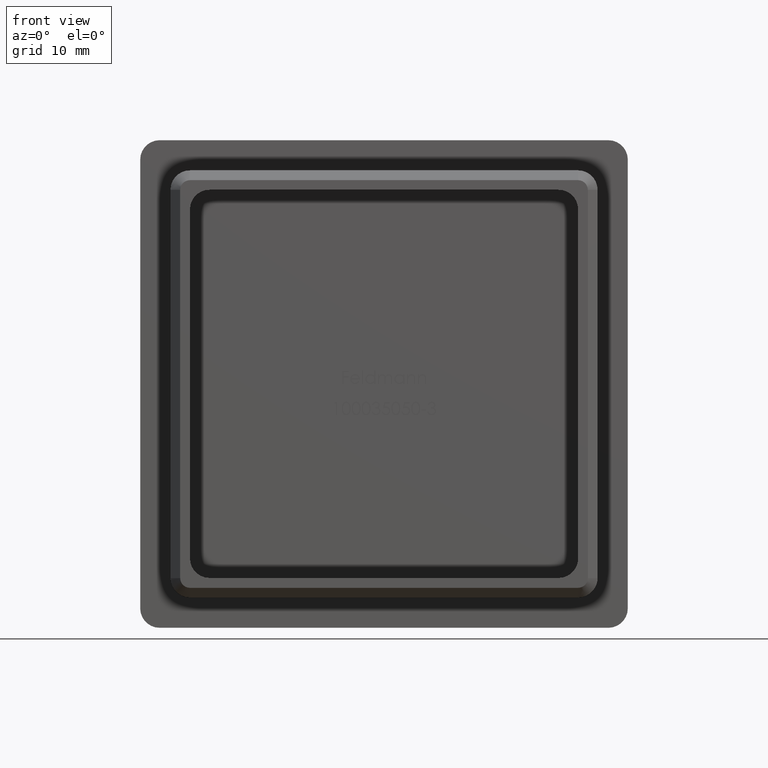
[diagram: clean part render]
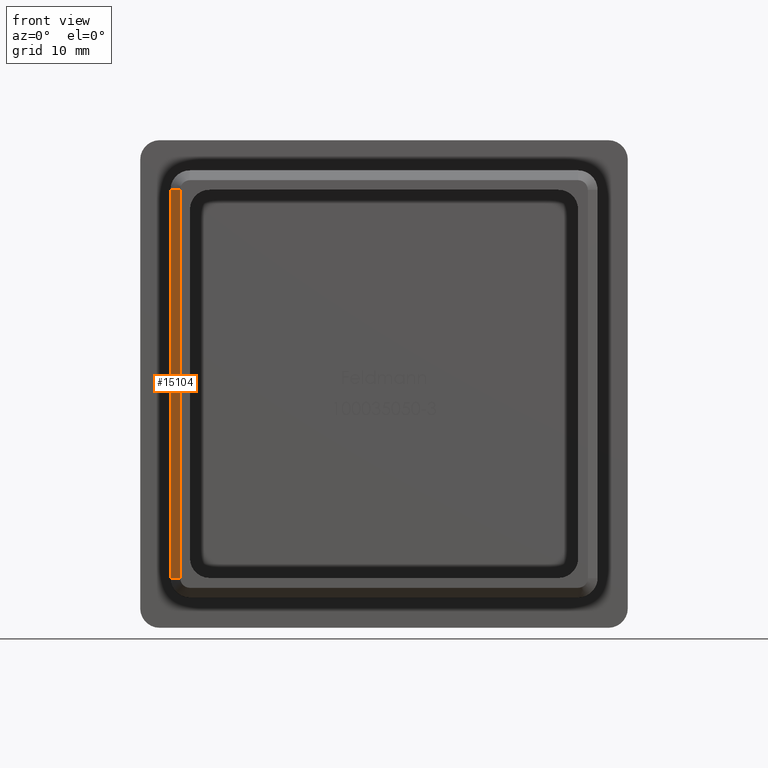
[diagram: same view with one face highlighted and labeled with its STEP entity id]
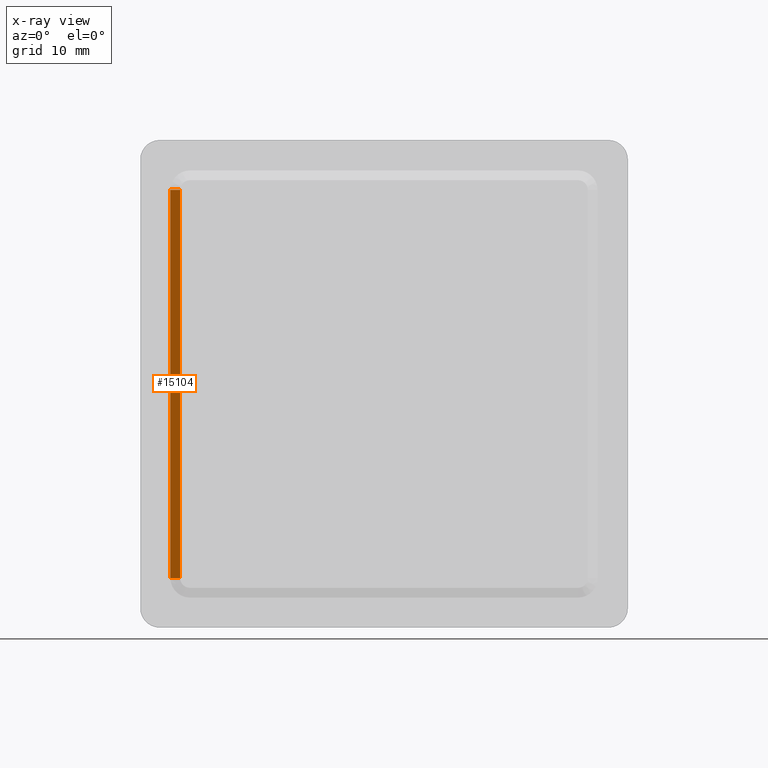
[diagram: x-ray of the same camera — body ghosted, the highlighted face saturated]
A machine part, front view. The second image highlights one B-rep face of the part: STEP entity #15104.
The next image is the same camera in x-ray: the body ghosted, the highlighted face saturated — about 0% of this face is hidden behind the body in this view.
In plain terms, the highlighted planar face has unit normal (-0.7071, -0.7071, 0).
Its self-contained STEP definition (entity closure, byte-faithful):
#102 = CARTESIAN_POINT ( 'NONE',  ( -21.90000000000000600, -18.99999999999998600, -19.90000000000001300 ) ) ;
#262 = EDGE_CURVE ( 'NONE', #7218, #3425, #3527, .T. ) ;
#1974 = ORIENTED_EDGE ( 'NONE', *, *, #7761, .F. ) ;
#2009 = LINE ( 'NONE', #7489, #11946 ) ;
#2305 = FACE_OUTER_BOUND ( 'NONE', #16246, .T. ) ;
#2856 = DIRECTION ( 'NONE',  ( 0.0000000000000000000, 0.0000000000000000000, -1.000000000000000000 ) ) ;
#3425 = VERTEX_POINT ( 'NONE', #5342 ) ;
#3527 = LINE ( 'NONE', #4675, #5168 ) ;
#3913 = VECTOR ( 'NONE', #2856, 1000.000000000000000 ) ;
#4448 = ORIENTED_EDGE ( 'NONE', *, *, #12961, .F. ) ;
#4657 = AXIS2_PLACEMENT_3D ( 'NONE', #15986, #9434, #8294 ) ;
#4675 = CARTESIAN_POINT ( 'NONE',  ( -21.90000000000000600, -18.99999999999998600, 19.90000000000000900 ) ) ;
#5168 = VECTOR ( 'NONE', #9722, 1000.000000000000100 ) ;
#5269 = DIRECTION ( 'NONE',  ( -0.7071067811865451300, 0.7071067811865500200, -2.453269466693370600E-015 ) ) ;
#5342 = CARTESIAN_POINT ( 'NONE',  ( -20.89999999999999900, -20.00000000000000000, 19.90000000000000900 ) ) ;
#5947 = ORIENTED_EDGE ( 'NONE', *, *, #262, .F. ) ;
#7218 = VERTEX_POINT ( 'NONE', #12285 ) ;
#7489 = CARTESIAN_POINT ( 'NONE',  ( -20.89999999999999900, -20.00000000000000000, -19.90000000000000900 ) ) ;
#7492 = VECTOR ( 'NONE', #13897, 1000.000000000000000 ) ;
#7761 = EDGE_CURVE ( 'NONE', #15803, #13064, #2009, .T. ) ;
#8294 = DIRECTION ( 'NONE',  ( -0.0000000000000000000, 0.0000000000000000000, 1.000000000000000000 ) ) ;
#8806 = CARTESIAN_POINT ( 'NONE',  ( -20.89999999999999900, -20.00000000000000000, -19.90000000000000900 ) ) ;
#9164 = CARTESIAN_POINT ( 'NONE',  ( -20.89999999999999900, -20.00000000000000000, -19.90000000000001300 ) ) ;
#9434 = DIRECTION ( 'NONE',  ( -0.7071067811865500200, -0.7071067811865451300, 0.0000000000000000000 ) ) ;
#9722 = DIRECTION ( 'NONE',  ( 0.7071067811865451300, -0.7071067811865500200, 0.0000000000000000000 ) ) ;
#10403 = LINE ( 'NONE', #9164, #3913 ) ;
#10545 = PLANE ( 'NONE',  #4657 ) ;
#11387 = CARTESIAN_POINT ( 'NONE',  ( -21.90000000000000600, -18.99999999999998600, 19.90000000000000900 ) ) ;
#11946 = VECTOR ( 'NONE', #5269, 1000.000000000000100 ) ;
#12285 = CARTESIAN_POINT ( 'NONE',  ( -21.90000000000000600, -18.99999999999998600, 19.90000000000000900 ) ) ;
#12945 = LINE ( 'NONE', #11387, #7492 ) ;
#12961 = EDGE_CURVE ( 'NONE', #13064, #7218, #12945, .T. ) ;
#13064 = VERTEX_POINT ( 'NONE', #102 ) ;
#13897 = DIRECTION ( 'NONE',  ( 0.0000000000000000000, 0.0000000000000000000, 1.000000000000000000 ) ) ;
#14331 = ORIENTED_EDGE ( 'NONE', *, *, #14671, .F. ) ;
#14671 = EDGE_CURVE ( 'NONE', #3425, #15803, #10403, .T. ) ;
#15104 = ADVANCED_FACE ( 'NONE', ( #2305 ), #10545, .T. ) ;
#15803 = VERTEX_POINT ( 'NONE', #8806 ) ;
#15986 = CARTESIAN_POINT ( 'NONE',  ( -20.89999999999999900, -20.00000000000000000, 0.0000000000000000000 ) ) ;
#16246 = EDGE_LOOP ( 'NONE', ( #5947, #4448, #1974, #14331 ) ) ;